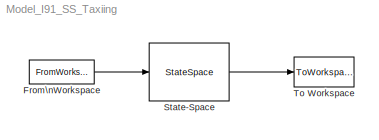
MODEL Model_I91_SS_Taxiing
KIND model
BLOCK [FromWorkspace] From\nWorkspace
  SampleTime = dt
  VariableName = in
BLOCK [StateSpace] State-Space
  A = A
  B = B
  C = C
  D = D
BLOCK [ToWorkspace] To Workspace
  MaxDataPoints = inf
  SampleTime = dt
  SaveFormat = Array
  VariableName = out
LINE From\nWorkspace:1 -> State-Space:1
LINE State-Space:1 -> To Workspace:1
